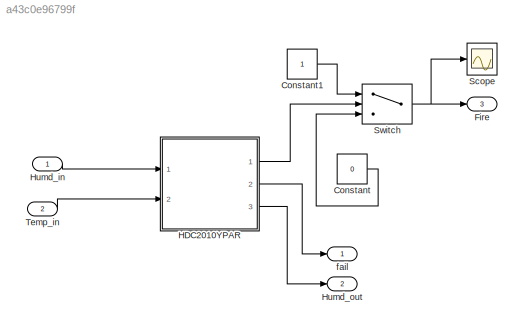
MODEL slx_a43c0e96799f
KIND model
CONFIG AbsTol = auto
CONFIG EnableMultiTasking = off
CONFIG FixedStep = auto
CONFIG MaxStep = auto
CONFIG MinStep = auto
CONFIG RelTol = 1e-3
CONFIG SampleTimeConstraint = Unconstrained
CONFIG Solver = VariableStepAuto
CONFIG SolverName = VariableStepAuto
CONFIG StartTime = 0.0
CONFIG StopTime = 20
BLOCK [Constant] Constant
  Value = 0
BLOCK [Constant] Constant1
BLOCK [Outport] Fire
  IconDisplay = Port number
  Port = 3
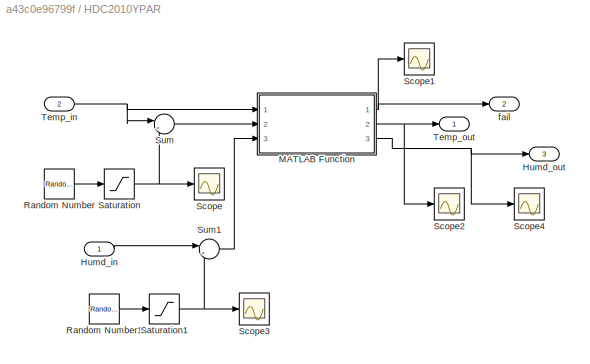
BLOCK [SubSystem] HDC2010YPAR
  Ports = [2, 3]
  RequestExecContextInheritance = off
  Variant = off
BLOCK [Inport] HDC2010YPAR/Humd_in
  IconDisplay = Port number
BLOCK [Outport] HDC2010YPAR/Humd_out
  IconDisplay = Port number
  Port = 3
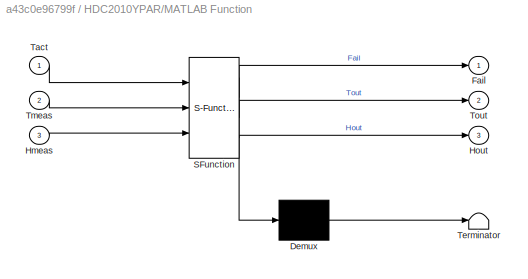
BLOCK [SubSystem] HDC2010YPAR/MATLAB Function
  ErrorFcn = Stateflow.Translate.translate
  PermitHierarchicalResolution = ExplicitOnly
  Ports = [3, 3]
  RequestExecContextInheritance = off
  SFBlockType = MATLAB Function
  TreatAsAtomicUnit = on
  Variant = off
BLOCK [Demux] HDC2010YPAR/MATLAB Function/ Demux 
  Outputs = 1
  Ports = [1, 1]
BLOCK [S-Function] HDC2010YPAR/MATLAB Function/ SFunction 
  EnableBusSupport = on
  FunctionName = sf_sfun
  PortCounts = [3 4]
  Ports = [3, 4]
  SFcnIsStateOwnerBlock = off
  SFunctionDeploymentMode = off
  Tag = Stateflow S-Function temp_and_humd_sensor 2
BLOCK [Terminator] HDC2010YPAR/MATLAB Function/ Terminator 
BLOCK [Outport] HDC2010YPAR/MATLAB Function/Fail
  IconDisplay = Port number
BLOCK [Inport] HDC2010YPAR/MATLAB Function/Hmeas
  IconDisplay = Port number
  Port = 3
BLOCK [Outport] HDC2010YPAR/MATLAB Function/Hout
  IconDisplay = Port number
  Port = 3
BLOCK [Inport] HDC2010YPAR/MATLAB Function/Tact
  IconDisplay = Port number
BLOCK [Inport] HDC2010YPAR/MATLAB Function/Tmeas
  IconDisplay = Port number
  Port = 2
BLOCK [Outport] HDC2010YPAR/MATLAB Function/Tout
  IconDisplay = Port number
  Port = 2
BLOCK [RandomNumber] HDC2010YPAR/Random Number
  SampleTime = 1
  Variance = 0.1
BLOCK [RandomNumber] HDC2010YPAR/Random Number1
  SampleTime = 1
  Variance = 2
BLOCK [Saturate] HDC2010YPAR/Saturation
  InputPortMap = u0
  LowerLimit = -0.2
  Ports = [1, 1]
  UpperLimit = 0.2
BLOCK [Saturate] HDC2010YPAR/Saturation1
  InputPortMap = u0
  LowerLimit = -2
  Ports = [1, 1]
  UpperLimit = 2
BLOCK [Scope] HDC2010YPAR/Scope
  NumInputPorts = 1
  Ports = [1]
  ScopeSpecificationString = Simulink.scopes.TimeScopeBlockCfg('CurrentConfiguration', extmgr.ConfigurationSet(extmgr.Configuration('Core','General UI',true),extmgr.Configuration('Core','Source UI',true),extmgr.Configuration('Sources','WiredSimulink',true),extmgr.Configuration('Visuals','Time Domain',true,'SerializedDisplays',{struct('MinYLimReal','-0.25','MaxYLimReal','0.25','YLabelReal','','MinYLimMag','0.00000','MaxYLimMag...<+1312ch>
BLOCK [Scope] HDC2010YPAR/Scope1
  NumInputPorts = 1
  Ports = [1]
  ScopeSpecificationString = Simulink.scopes.TimeScopeBlockCfg('CurrentConfiguration', extmgr.ConfigurationSet(extmgr.Configuration('Core','General UI',true),extmgr.Configuration('Core','Source UI',true),extmgr.Configuration('Sources','WiredSimulink',true,'DataLoggingVariableName','ScopeData1'),extmgr.Configuration('Visuals','Time Domain',true,'SerializedDisplays',{struct('MinYLimReal','-1.00000','MaxYLimReal','1.00000','YLab...<+1379ch>
BLOCK [Scope] HDC2010YPAR/Scope2
  NumInputPorts = 1
  Ports = [1]
  ScopeSpecificationString = Simulink.scopes.TimeScopeBlockCfg('CurrentConfiguration', extmgr.ConfigurationSet(extmgr.Configuration('Core','General UI',true),extmgr.Configuration('Core','Source UI',true),extmgr.Configuration('Sources','WiredSimulink',true,'DataLoggingVariableName','ScopeData3'),extmgr.Configuration('Visuals','Time Domain',true,'SerializedDisplays',{struct('MinYLimReal','119.75','MaxYLimReal','120.25','YLabelR...<+1369ch>
BLOCK [Scope] HDC2010YPAR/Scope3
  NumInputPorts = 1
  Ports = [1]
  ScopeSpecificationString = Simulink.scopes.TimeScopeBlockCfg('CurrentConfiguration', extmgr.ConfigurationSet(extmgr.Configuration('Core','General UI',true),extmgr.Configuration('Core','Source UI',true),extmgr.Configuration('Sources','WiredSimulink',true,'DataLoggingVariableName','ScopeData3'),extmgr.Configuration('Visuals','Time Domain',true,'SerializedDisplays',{struct('MinYLimReal','-2.5','MaxYLimReal','2.5','YLabelReal',...<+1346ch>
BLOCK [Scope] HDC2010YPAR/Scope4
  NumInputPorts = 1
  Ports = [1]
  ScopeSpecificationString = Simulink.scopes.TimeScopeBlockCfg('CurrentConfiguration', extmgr.ConfigurationSet(extmgr.Configuration('Core','General UI',true),extmgr.Configuration('Core','Source UI',true),extmgr.Configuration('Sources','WiredSimulink',true,'DataLoggingVariableName','ScopeData2'),extmgr.Configuration('Visuals','Time Domain',true,'SerializedDisplays',{struct('MinYLimReal','-2.5','MaxYLimReal','2.5','YLabelReal',...<+1355ch>
BLOCK [Sum] HDC2010YPAR/Sum
  IconShape = round
  InputSameDT = off
  Inputs = |++
  OutDataTypeStr = Inherit: Inherit via internal rule
  Ports = [2, 1]
  SaturateOnIntegerOverflow = off
BLOCK [Sum] HDC2010YPAR/Sum1
  IconShape = round
  InputSameDT = off
  Inputs = |++
  OutDataTypeStr = Inherit: Inherit via internal rule
  Ports = [2, 1]
  SaturateOnIntegerOverflow = off
BLOCK [Inport] HDC2010YPAR/Temp_in
  IconDisplay = Port number
  Port = 2
BLOCK [Outport] HDC2010YPAR/Temp_out
  IconDisplay = Port number
BLOCK [Outport] HDC2010YPAR/fail
  IconDisplay = Port number
  Port = 2
BLOCK [Inport] Humd_in
  IconDisplay = Port number
BLOCK [Outport] Humd_out
  IconDisplay = Port number
  Port = 2
BLOCK [Scope] Scope
  NumInputPorts = 1
  Ports = [1]
  ScopeSpecificationString = Simulink.scopes.TimeScopeBlockCfg('CurrentConfiguration', extmgr.ConfigurationSet(extmgr.Configuration('Core','General UI',true),extmgr.Configuration('Core','Source UI',true),extmgr.Configuration('Sources','WiredSimulink',true,'DataLoggingVariableName','ScopeData1'),extmgr.Configuration('Visuals','Time Domain',true,'SerializedDisplays',{struct('MinYLimReal','0.9','MaxYLimReal','1.1','YLabelReal','...<+1331ch>
BLOCK [Switch] Switch
  Criteria = u2 > Threshold
  InputSameDT = off
  SaturateOnIntegerOverflow = off
  Threshold = 85
BLOCK [Inport] Temp_in
  IconDisplay = Port number
  Port = 2
BLOCK [Outport] fail
  IconDisplay = Port number
LINE Constant1:1 -> Switch:1
LINE Constant:1 -> Switch:3
LINE HDC2010YPAR/Humd_in:1 -> HDC2010YPAR/Sum1:1
NET HDC2010YPAR/MATLAB Function:1 -> HDC2010YPAR/Scope1:1, HDC2010YPAR/fail:1
NET HDC2010YPAR/MATLAB Function:2 -> HDC2010YPAR/Scope2:1, HDC2010YPAR/Temp_out:1
NET HDC2010YPAR/MATLAB Function:3 -> HDC2010YPAR/Humd_out:1, HDC2010YPAR/Scope4:1
LINE HDC2010YPAR/Random Number1:1 -> HDC2010YPAR/Saturation1:1
LINE HDC2010YPAR/Random Number:1 -> HDC2010YPAR/Saturation:1
NET HDC2010YPAR/Saturation1:1 -> HDC2010YPAR/Scope3:1, HDC2010YPAR/Sum1:2
NET HDC2010YPAR/Saturation:1 -> HDC2010YPAR/Scope:1, HDC2010YPAR/Sum:2
LINE HDC2010YPAR/Sum1:1 -> HDC2010YPAR/MATLAB Function:3
LINE HDC2010YPAR/Sum:1 -> HDC2010YPAR/MATLAB Function:2
NET HDC2010YPAR/Temp_in:1 -> HDC2010YPAR/MATLAB Function:1, HDC2010YPAR/Sum:1
LINE HDC2010YPAR:1 -> Switch:2
LINE HDC2010YPAR:2 -> fail:1
LINE HDC2010YPAR:3 -> Humd_out:1
LINE Humd_in:1 -> HDC2010YPAR:1
NET Switch:1 -> Fire:1, Scope:1
LINE Temp_in:1 -> HDC2010YPAR:2
note: NET lines group one-source signal fan-out (src -> all destinations, sorted); 1:1 wires keep LINE
CHART HDC2010YPAR/MATLAB Function states=1 transitions=1
  STATE_LABEL 'eML_blk_kernel()'
  STATE_LABEL 'SCRIPT:\nfunction [Fail,Tout,Hout]= sensorFail(Tact,Tmeas,Hmeas)\n    if ( Tact < -40 ) || (Tact > 125 ) \n        Fail = -1 ; % outside operating temp, sensor failure \n        Tout = 0 ;\n        Hout = 0 ;\n    else \n        Fail = 0 ; % within operating temp \n        Tout = Tmeas ;\n        Hout = Hmeas ;\n    end\nend \n'
